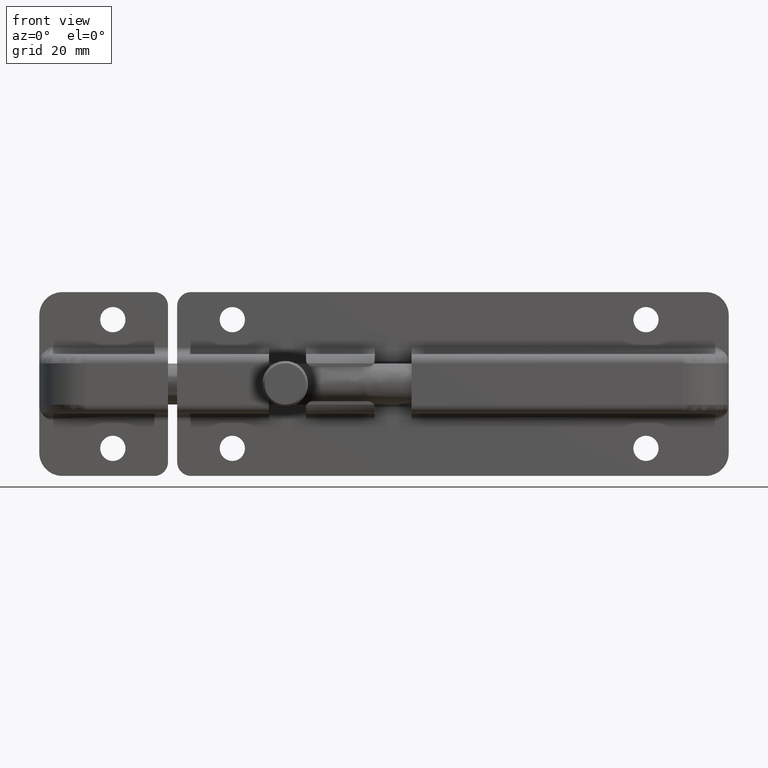
[diagram: clean part render]
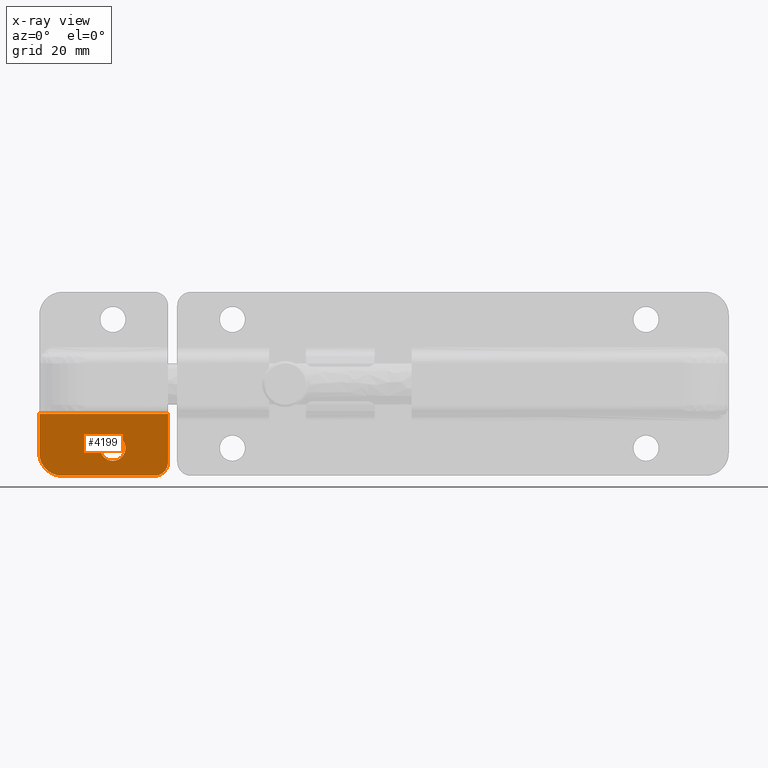
[diagram: x-ray — body ghosted, one internal face saturated and labeled with its STEP entity id]
A machine part, front view, then the same camera in x-ray: the body is ghosted and one INTERNAL B-rep face — a face not visible from any outside direction — is saturated and labeled: STEP entity #4199.
In plain terms, the highlighted face is a freeform B-spline surface patch.
Its self-contained STEP definition (entity closure, byte-faithful):
#2591=CARTESIAN_POINT('',(-41.755129304350703,5.204170E-017,-14.167883483898150));
#2592=VERTEX_POINT('',#2591);
#2598=CARTESIAN_POINT('',(-44.500000000000000,0.0,-16.750000000000000));
#2599=VERTEX_POINT('',#2598);
#2600=CARTESIAN_POINT('',(-44.500000000000000,0.0,-16.750000000000000));
#2601=CARTESIAN_POINT('',(-41.913058316344141,0.0,-16.749999999999996));
#2602=CARTESIAN_POINT('',(-41.755129304350703,5.204170E-017,-14.167883483898153));
#2610=(BOUNDED_CURVE()B_SPLINE_CURVE(2,(#2600,#2601,#2602),.UNSPECIFIED.,.F.,.U.)B_SPLINE_CURVE_WITH_KNOTS((3,3),(0.500000000000000,0.739332962219678),.UNSPECIFIED.)CURVE()GEOMETRIC_REPRESENTATION_ITEM()RATIONAL_B_SPLINE_CURVE((1.0,0.719603993309280,0.976072041625430))REPRESENTATION_ITEM(''));
#2611=EDGE_CURVE('',#2599,#2592,#2610,.T.);
#2613=CARTESIAN_POINT('',(-47.230776197498507,4.968999E-017,-13.675405854680699));
#2614=VERTEX_POINT('',#2613);
#2615=CARTESIAN_POINT('',(-47.230776197498521,4.968999E-017,-13.675405854680694));
#2616=CARTESIAN_POINT('',(-47.250000000000000,0.0,-13.837133670943892));
#2617=CARTESIAN_POINT('',(-47.250000000000000,0.0,-14.0));
#2618=CARTESIAN_POINT('',(-47.250000000000000,0.0,-16.750000000000000));
#2619=CARTESIAN_POINT('',(-44.500000000000000,0.0,-16.750000000000000));
#2627=(BOUNDED_CURVE()B_SPLINE_CURVE(2,(#2615,#2616,#2617,#2618,#2619),.UNSPECIFIED.,.F.,.U.)B_SPLINE_CURVE_WITH_KNOTS((3,2,3),(0.229562473514008,0.250000000000000,0.500000000000000),.UNSPECIFIED.)CURVE()GEOMETRIC_REPRESENTATION_ITEM()RATIONAL_B_SPLINE_CURVE((0.956026754184679,0.976055948331731,1.0,0.707106781186548,1.0))REPRESENTATION_ITEM(''));
#2628=EDGE_CURVE('',#2614,#2599,#2627,.T.);
#2672=CARTESIAN_POINT('',(-44.500000000000000,0.0,-11.250000000000000));
#2673=VERTEX_POINT('',#2672);
#2674=CARTESIAN_POINT('',(-44.500000000000000,0.0,-11.250000000000000));
#2675=CARTESIAN_POINT('',(-46.942479946342452,0.0,-11.249999999999996));
#2676=CARTESIAN_POINT('',(-47.230776197498514,4.968999E-017,-13.675405854680703));
#2684=(BOUNDED_CURVE()B_SPLINE_CURVE(2,(#2674,#2675,#2676),.UNSPECIFIED.,.F.,.U.)B_SPLINE_CURVE_WITH_KNOTS((3,3),(0.0,0.229562473514008),.UNSPECIFIED.)CURVE()GEOMETRIC_REPRESENTATION_ITEM()RATIONAL_B_SPLINE_CURVE((1.0,0.731050832854817,0.956026754184679))REPRESENTATION_ITEM(''));
#2685=EDGE_CURVE('',#2673,#2614,#2684,.T.);
#2687=CARTESIAN_POINT('',(-41.755129304350703,5.204170E-017,-14.167883483898150));
#2688=CARTESIAN_POINT('',(-41.749999999999993,0.0,-14.084020099248916));
#2689=CARTESIAN_POINT('',(-41.749999999999993,0.0,-14.0));
#2690=CARTESIAN_POINT('',(-41.750000000000000,0.0,-11.249999999999998));
#2691=CARTESIAN_POINT('',(-44.500000000000000,0.0,-11.250000000000000));
#2699=(BOUNDED_CURVE()B_SPLINE_CURVE(2,(#2687,#2688,#2689,#2690,#2691),.UNSPECIFIED.,.F.,.U.)B_SPLINE_CURVE_WITH_KNOTS((3,2,3),(0.739332962219678,0.750000000000000,1.0),.UNSPECIFIED.)CURVE()GEOMETRIC_REPRESENTATION_ITEM()RATIONAL_B_SPLINE_CURVE((0.976072041625429,0.987502787877267,1.0,0.707106781186548,1.0))REPRESENTATION_ITEM(''));
#2700=EDGE_CURVE('',#2592,#2673,#2699,.T.);
#3475=CARTESIAN_POINT('',(-60.500000000000000,0.0,-6.500000000000000));
#3476=VERTEX_POINT('',#3475);
#3512=CARTESIAN_POINT('',(-32.500000000000000,0.0,-6.500000000000000));
#3513=VERTEX_POINT('',#3512);
#3529=CARTESIAN_POINT('',(-60.500000000000000,0.0,-6.500000000000000));
#3530=CARTESIAN_POINT('',(-32.500000000000000,0.0,-6.500000000000000));
#3531=QUASI_UNIFORM_CURVE('',1,(#3529,#3530),.UNSPECIFIED.,.F.,.U.);
#3532=EDGE_CURVE('',#3476,#3513,#3531,.T.);
#3602=CARTESIAN_POINT('',(-55.500000000000000,0.0,-20.0));
#3603=VERTEX_POINT('',#3602);
#3604=CARTESIAN_POINT('',(-60.500000000000000,0.0,-15.0));
#3605=VERTEX_POINT('',#3604);
#3606=CARTESIAN_POINT('',(-55.500000000000000,0.0,-20.0));
#3607=CARTESIAN_POINT('',(-60.500000000000000,0.0,-19.999999999999996));
#3608=CARTESIAN_POINT('',(-60.500000000000000,0.0,-15.0));
#3616=(BOUNDED_CURVE()B_SPLINE_CURVE(2,(#3606,#3607,#3608),.UNSPECIFIED.,.F.,.U.)CURVE()GEOMETRIC_REPRESENTATION_ITEM()QUASI_UNIFORM_CURVE()RATIONAL_B_SPLINE_CURVE((1.0,0.707106781186548,1.0))REPRESENTATION_ITEM(''));
#3617=EDGE_CURVE('',#3603,#3605,#3616,.T.);
#3785=CARTESIAN_POINT('',(-32.500000000000000,0.0,-17.0));
#3786=VERTEX_POINT('',#3785);
#3787=CARTESIAN_POINT('',(-35.500000000000000,0.0,-20.0));
#3788=VERTEX_POINT('',#3787);
#3789=CARTESIAN_POINT('',(-32.499999999999993,0.0,-17.0));
#3790=CARTESIAN_POINT('',(-32.499999999999986,0.0,-19.999999999999996));
#3791=CARTESIAN_POINT('',(-35.500000000000000,0.0,-20.0));
#3799=(BOUNDED_CURVE()B_SPLINE_CURVE(2,(#3789,#3790,#3791),.UNSPECIFIED.,.F.,.U.)CURVE()GEOMETRIC_REPRESENTATION_ITEM()QUASI_UNIFORM_CURVE()RATIONAL_B_SPLINE_CURVE((1.0,0.707106781186548,1.0))REPRESENTATION_ITEM(''));
#3800=EDGE_CURVE('',#3786,#3788,#3799,.T.);
#3999=CARTESIAN_POINT('',(-60.500000000000000,0.0,-6.500000000000000));
#4000=CARTESIAN_POINT('',(-60.500000000000000,0.0,-15.0));
#4001=QUASI_UNIFORM_CURVE('',1,(#3999,#4000),.UNSPECIFIED.,.F.,.U.);
#4002=EDGE_CURVE('',#3476,#3605,#4001,.T.);
#4031=CARTESIAN_POINT('',(-32.500000000000000,0.0,-6.500000000000000));
#4032=CARTESIAN_POINT('',(-32.500000000000000,0.0,-17.0));
#4033=QUASI_UNIFORM_CURVE('',1,(#4031,#4032),.UNSPECIFIED.,.F.,.U.);
#4034=EDGE_CURVE('',#3513,#3786,#4033,.T.);
#4169=CARTESIAN_POINT('',(-35.500000000000000,0.0,-20.0));
#4170=CARTESIAN_POINT('',(-55.500000000000000,0.0,-20.0));
#4171=QUASI_UNIFORM_CURVE('',1,(#4169,#4170),.UNSPECIFIED.,.F.,.U.);
#4172=EDGE_CURVE('',#3788,#3603,#4171,.T.);
#4180=CARTESIAN_POINT('',(-61.898599945730581,0.0,-20.674324973834381));
#4181=CARTESIAN_POINT('',(-61.898599945730581,0.0,-5.825674664067401));
#4182=CARTESIAN_POINT('',(-31.101399303250918,0.0,-20.674324973834381));
#4183=CARTESIAN_POINT('',(-31.101399303250918,0.0,-5.825674664067401));
#4184=B_SPLINE_SURFACE_WITH_KNOTS('',1,1,((#4180,#4182),(#4181,#4183)),.UNSPECIFIED.,.F.,.F.,.U.,(2,2),(2,2),(0.0,14.848650309766990),(0.0,30.797200642479670),.UNSPECIFIED.);
#4185=ORIENTED_EDGE('',*,*,#4002,.F.);
#4186=ORIENTED_EDGE('',*,*,#3532,.T.);
#4187=ORIENTED_EDGE('',*,*,#4034,.T.);
#4188=ORIENTED_EDGE('',*,*,#3800,.T.);
#4189=ORIENTED_EDGE('',*,*,#4172,.T.);
#4190=ORIENTED_EDGE('',*,*,#3617,.T.);
#4191=EDGE_LOOP('',(#4185,#4186,#4187,#4188,#4189,#4190));
#4192=FACE_OUTER_BOUND('',#4191,.T.);
#4193=ORIENTED_EDGE('',*,*,#2611,.T.);
#4194=ORIENTED_EDGE('',*,*,#2700,.T.);
#4195=ORIENTED_EDGE('',*,*,#2685,.T.);
#4196=ORIENTED_EDGE('',*,*,#2628,.T.);
#4197=EDGE_LOOP('',(#4193,#4194,#4195,#4196));
#4198=FACE_BOUND('',#4197,.T.);
#4199=ADVANCED_FACE('',(#4192,#4198),#4184,.T.);